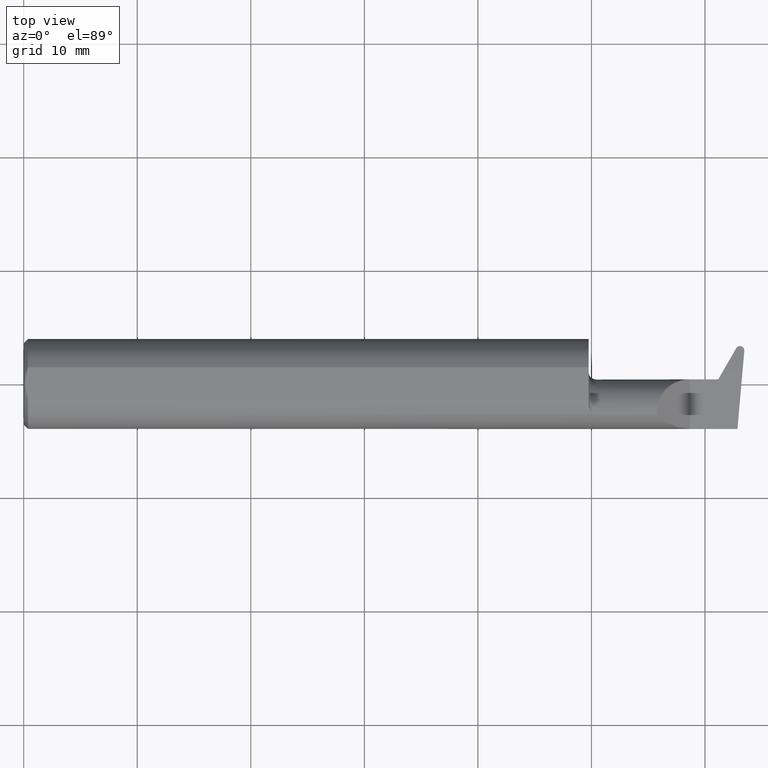
[diagram: clean part render]
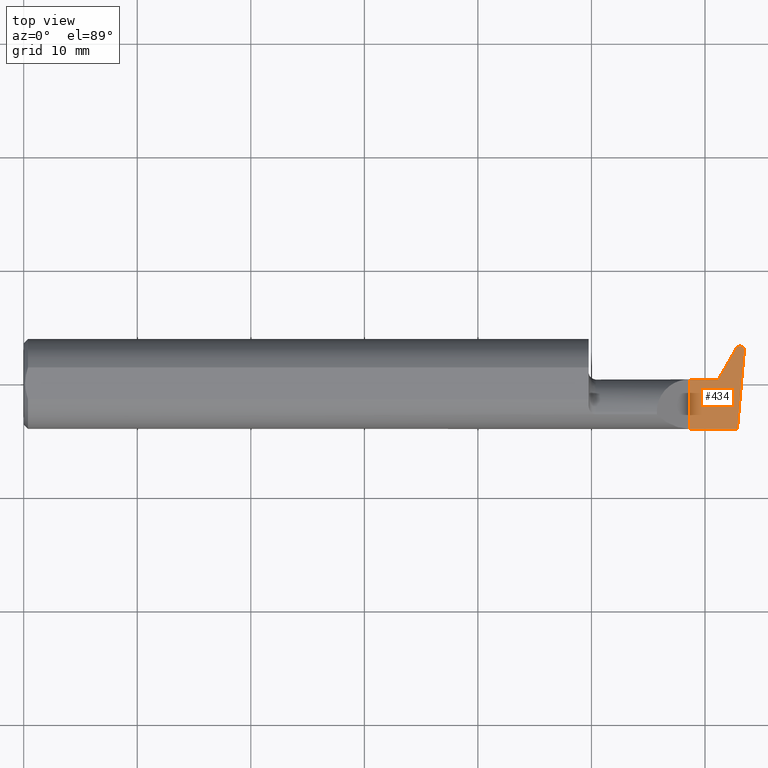
[diagram: same view with one face highlighted and labeled with its STEP entity id]
A machine part, top view. The second image highlights one B-rep face of the part: STEP entity #434.
In plain terms, the highlighted planar face has unit normal (-0, 0, -1).
Its self-contained STEP definition (entity closure, byte-faithful):
#3 = LINE ( 'NONE', #632, #770 ) ;
#7 = CARTESIAN_POINT ( 'NONE',  ( 2.470409913572158001, 0.1240129247740456436, -3.995833282175376183E-17 ) ) ;
#9 = EDGE_CURVE ( 'NONE', #887, #490, #229, .T. ) ;
#12 = CARTESIAN_POINT ( 'NONE',  ( 2.498482938907916395, 0.1146397426947429188, -3.995833282175376183E-17 ) ) ;
#30 = VECTOR ( 'NONE', #866, 39.37007874015748143 ) ;
#45 = LINE ( 'NONE', #370, #70 ) ;
#56 = ORIENTED_EDGE ( 'NONE', *, *, #918, .T. ) ;
#59 = EDGE_CURVE ( 'NONE', #469, #894, #304, .T. ) ;
#70 = VECTOR ( 'NONE', #976, 39.37007874015748854 ) ;
#80 = AXIS2_PLACEMENT_3D ( 'NONE', #265, #100, #427 ) ;
#82 = DIRECTION ( 'NONE',  ( -1.000000000000000000, -0.000000000000000000, -0.000000000000000000 ) ) ;
#100 = DIRECTION ( 'NONE',  ( -0.000000000000000000, 0.000000000000000000, -1.000000000000000000 ) ) ;
#102 = CARTESIAN_POINT ( 'NONE',  ( 2.498482938907916395, 0.1146397426947429188, -3.995833282175376183E-17 ) ) ;
#147 = VERTEX_POINT ( 'NONE', #828 ) ;
#156 = LINE ( 'NONE', #476, #30 ) ;
#172 = DIRECTION ( 'NONE',  ( 0.9993908270190960952, 0.03489949670248750080, -0.000000000000000000 ) ) ;
#203 = EDGE_CURVE ( 'NONE', #734, #228, #362, .T. ) ;
#204 = VECTOR ( 'NONE', #547, 39.37007874015748143 ) ;
#206 = ORIENTED_EDGE ( 'NONE', *, *, #9, .T. ) ;
#228 = VERTEX_POINT ( 'NONE', #865 ) ;
#229 =( BOUNDED_CURVE ( )  B_SPLINE_CURVE ( 3, ( #102, #883, #356, #436 ),
 .UNSPECIFIED., .F., .T. ) 
 B_SPLINE_CURVE_WITH_KNOTS ( ( 4, 4 ),
 ( 4.990225226795184987, 6.645113433441892425 ),
 .UNSPECIFIED. ) 
 CURVE ( )  GEOMETRIC_REPRESENTATION_ITEM ( )  RATIONAL_B_SPLINE_CURVE ( ( 1.000000000000000000, 0.7845064200057644266, 0.7845064200057644266, 1.000000000000000000 ) ) 
 REPRESENTATION_ITEM ( '' )  );
#234 = EDGE_CURVE ( 'NONE', #327, #585, #3, .T. ) ;
#240 = CARTESIAN_POINT ( 'NONE',  ( 1.958566166913449536, 0.01580000000000002236, -3.995833282175376183E-17 ) ) ;
#252 = EDGE_LOOP ( 'NONE', ( #849, #206, #857, #868, #927, #56, #497, #630, #884, #464 ) ) ;
#265 = CARTESIAN_POINT ( 'NONE',  ( 2.195000000000000284, 0.2500000000000000000, -3.995833282175376183E-17 ) ) ;
#272 = CARTESIAN_POINT ( 'NONE',  ( 2.407933152324066128, 0.01579999999999937010, -4.678289689150051082E-15 ) ) ;
#274 = CARTESIAN_POINT ( 'NONE',  ( 2.470409913572158001, 0.1240129247740456436, -3.995833282175376183E-17 ) ) ;
#279 = EDGE_CURVE ( 'NONE', #147, #228, #1018, .T. ) ;
#304 =( BOUNDED_CURVE ( )  B_SPLINE_CURVE ( 3, ( #432, #731, #969, #274 ),
 .UNSPECIFIED., .F., .F. ) 
 B_SPLINE_CURVE_WITH_KNOTS ( ( 4, 4 ),
 ( 2.872717961742529358, 3.839150187757787602 ),
 .UNSPECIFIED. ) 
 CURVE ( )  GEOMETRIC_REPRESENTATION_ITEM ( )  RATIONAL_B_SPLINE_CURVE ( ( 1.000000000000000000, 0.9236701360441968989, 0.9236701360441968989, 1.000000000000000000 ) ) 
 REPRESENTATION_ITEM ( '' )  );
#327 = VERTEX_POINT ( 'NONE', #777 ) ;
#329 = EDGE_CURVE ( 'NONE', #147, #585, #400, .T. ) ;
#342 = DIRECTION ( 'NONE',  ( -0.03188516833202240108, 0.9994915387537998130, 0.000000000000000000 ) ) ;
#356 = CARTESIAN_POINT ( 'NONE',  ( 2.493011326852750287, 0.1316559501559829426, -6.829619984160658046E-17 ) ) ;
#361 = FACE_OUTER_BOUND ( 'NONE', #252, .T. ) ;
#362 = LINE ( 'NONE', #622, #985 ) ;
#370 = CARTESIAN_POINT ( 'NONE',  ( 2.507962491253655557, 0.2224926917156815065, -3.995833282175376183E-17 ) ) ;
#394 = VERTEX_POINT ( 'NONE', #272 ) ;
#400 = LINE ( 'NONE', #240, #946 ) ;
#406 = CARTESIAN_POINT ( 'NONE',  ( 2.308999999999999719, -0.1560999999999999888, -3.995833282175376183E-17 ) ) ;
#427 = DIRECTION ( 'NONE',  ( -1.000000000000000000, 0.000000000000000000, 0.000000000000000000 ) ) ;
#432 = CARTESIAN_POINT ( 'NONE',  ( 2.482349791269912842, 0.1312836411294668881, -3.995833282175376183E-17 ) ) ;
#434 = ADVANCED_FACE ( 'NONE', ( #361 ), #882, .F. ) ;
#435 = DIRECTION ( 'NONE',  ( 1.000000000000000000, 0.000000000000000000, 0.000000000000000000 ) ) ;
#436 = CARTESIAN_POINT ( 'NONE',  ( 2.483552023145979781, 0.1313256239916866519, -3.995833282175376183E-17 ) ) ;
#464 = ORIENTED_EDGE ( 'NONE', *, *, #203, .F. ) ;
#469 = VERTEX_POINT ( 'NONE', #681 ) ;
#476 = CARTESIAN_POINT ( 'NONE',  ( 2.195308468774736621, 0.01552028252030411039, -3.995833282175376183E-17 ) ) ;
#482 = VECTOR ( 'NONE', #172, 39.37007874015748854 ) ;
#490 = VERTEX_POINT ( 'NONE', #915 ) ;
#497 = ORIENTED_EDGE ( 'NONE', *, *, #234, .T. ) ;
#547 = DIRECTION ( 'NONE',  ( 0.000000000000000000, -1.000000000000000000, 0.000000000000000000 ) ) ;
#567 = LINE ( 'NONE', #791, #655 ) ;
#585 = VERTEX_POINT ( 'NONE', #981 ) ;
#621 = EDGE_CURVE ( 'NONE', #734, #887, #45, .T. ) ;
#622 = CARTESIAN_POINT ( 'NONE',  ( 2.500000000000000000, -0.1560999999999999888, -3.995833282175376183E-17 ) ) ;
#624 = DIRECTION ( 'NONE',  ( 0.5000000000000053291, 0.8660254037844354880, 0.000000000000000000 ) ) ;
#630 = ORIENTED_EDGE ( 'NONE', *, *, #329, .F. ) ;
#632 = CARTESIAN_POINT ( 'NONE',  ( 2.390002301977764532, 0.2562208442819288723, -3.995833282175376183E-17 ) ) ;
#655 = VECTOR ( 'NONE', #624, 39.37007874015748143 ) ;
#681 = CARTESIAN_POINT ( 'NONE',  ( 2.482349791269912842, 0.1312836411294668881, -3.995833282175376183E-17 ) ) ;
#699 = CARTESIAN_POINT ( 'NONE',  ( 2.474686727619818338, -0.1560999999999999888, -1.997916641087688092E-17 ) ) ;
#721 = CARTESIAN_POINT ( 'NONE',  ( 2.396450663812351500, 0.1282839774999803006, -3.995833282175376183E-17 ) ) ;
#731 = CARTESIAN_POINT ( 'NONE',  ( 2.477299821349250752, 0.1311072922939274243, -3.414809992080329023E-17 ) ) ;
#734 = VERTEX_POINT ( 'NONE', #699 ) ;
#770 = VECTOR ( 'NONE', #342, 39.37007874015748143 ) ;
#777 = CARTESIAN_POINT ( 'NONE',  ( 2.397672491460055344, 0.01578650163212952026, -1.997916641087688092E-17 ) ) ;
#791 = CARTESIAN_POINT ( 'NONE',  ( 2.342172956663365557, -0.09809999999999997888, -3.995833282175376183E-17 ) ) ;
#828 = CARTESIAN_POINT ( 'NONE',  ( 2.308999999999999719, 0.01579999999999997379, -3.995833282175376183E-17 ) ) ;
#844 = EDGE_CURVE ( 'NONE', #469, #490, #948, .T. ) ;
#849 = ORIENTED_EDGE ( 'NONE', *, *, #621, .T. ) ;
#857 = ORIENTED_EDGE ( 'NONE', *, *, #844, .F. ) ;
#865 = CARTESIAN_POINT ( 'NONE',  ( 2.308999999999999719, -0.1560999999999999888, -3.995833282175376183E-17 ) ) ;
#866 = DIRECTION ( 'NONE',  ( -0.9999991346709311557, -0.001315544521825620997, 0.000000000000000000 ) ) ;
#868 = ORIENTED_EDGE ( 'NONE', *, *, #59, .T. ) ;
#882 = PLANE ( 'NONE',  #80 ) ;
#883 = CARTESIAN_POINT ( 'NONE',  ( 2.499355407402924723, 0.1245661924554995192, -6.829619984160658046E-17 ) ) ;
#884 = ORIENTED_EDGE ( 'NONE', *, *, #279, .T. ) ;
#887 = VERTEX_POINT ( 'NONE', #12 ) ;
#888 = EDGE_CURVE ( 'NONE', #394, #894, #567, .T. ) ;
#894 = VERTEX_POINT ( 'NONE', #7 ) ;
#915 = CARTESIAN_POINT ( 'NONE',  ( 2.483552023145979781, 0.1313256239916866519, -3.995833282175376183E-17 ) ) ;
#918 = EDGE_CURVE ( 'NONE', #394, #327, #156, .T. ) ;
#927 = ORIENTED_EDGE ( 'NONE', *, *, #888, .F. ) ;
#946 = VECTOR ( 'NONE', #435, 39.37007874015748143 ) ;
#948 = LINE ( 'NONE', #721, #482 ) ;
#969 = CARTESIAN_POINT ( 'NONE',  ( 2.472990967920655425, 0.1284834420427400370, -3.414809992080329023E-17 ) ) ;
#976 = DIRECTION ( 'NONE',  ( 0.08755576316970543893, 0.9961596199082607406, 0.000000000000000000 ) ) ;
#981 = CARTESIAN_POINT ( 'NONE',  ( 2.397672060843371256, 0.01580000000000002236, -3.995833282175376183E-17 ) ) ;
#985 = VECTOR ( 'NONE', #82, 39.37007874015748143 ) ;
#1018 = LINE ( 'NONE', #406, #204 ) ;